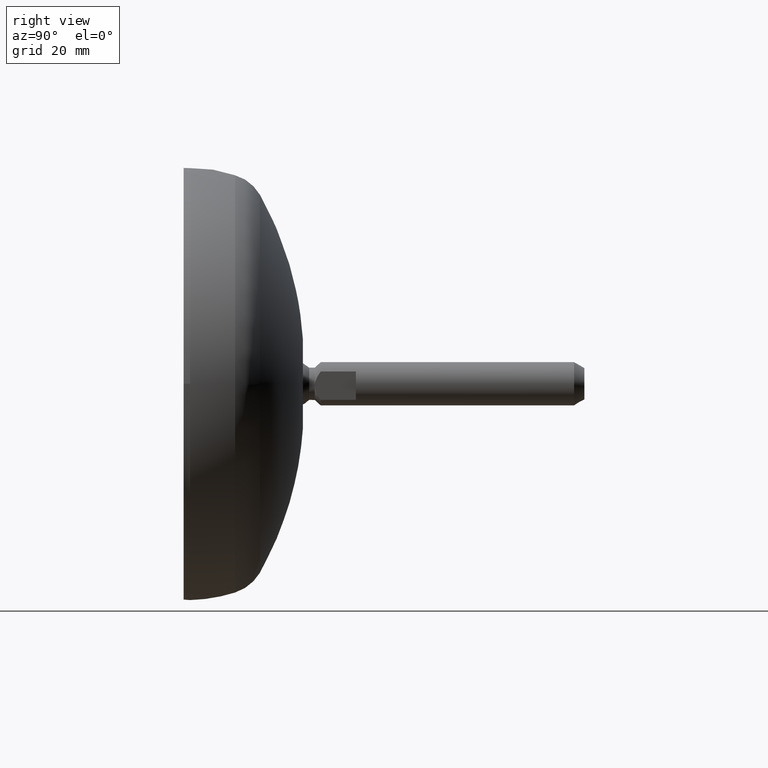
[diagram: clean part render]
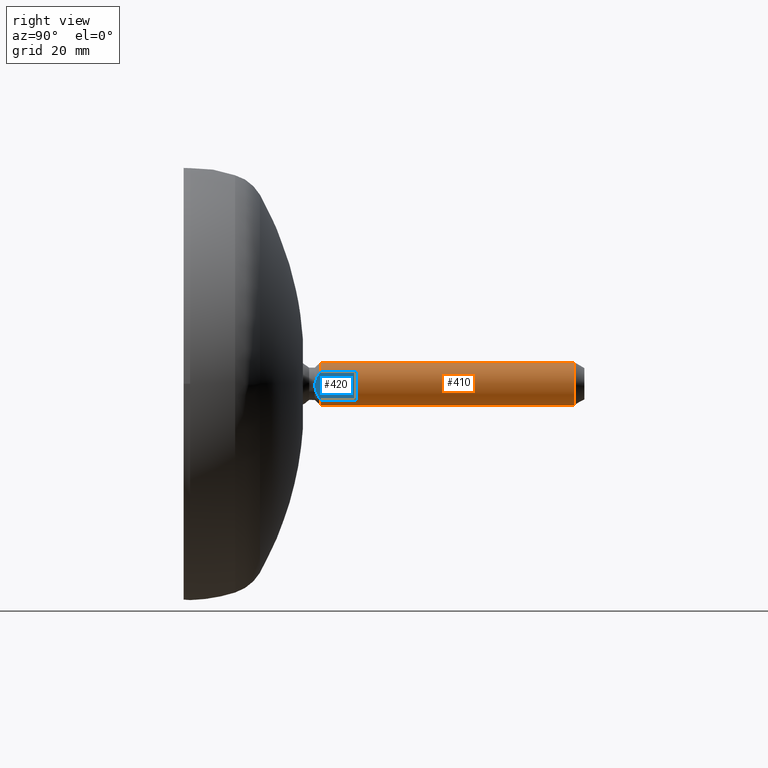
[diagram: same view with the hole feature highlighted: cylindrical wall and planar end face, labeled with their STEP entity ids]
A machine part, right view. The highlighted faces form one hole feature of diameter 8 mm: the cylindrical wall (entity #410, orange) and its adjacent planar end face (entity #420, blue) — they share a circular edge in the B-rep.
Wall:
#38=CYLINDRICAL_SURFACE('',#503,3.99999847606768);
#49=LINE('',#874,#61);
#50=LINE('',#878,#62);
#51=LINE('',#882,#63);
#52=LINE('',#889,#64);
#53=LINE('',#892,#65);
#61=VECTOR('',#616,10.);
#62=VECTOR('',#619,10.);
#63=VECTOR('',#622,3.99999847606768);
#64=VECTOR('',#629,10.);
#65=VECTOR('',#632,10.);
#89=FACE_OUTER_BOUND('',#115,.T.);
#115=EDGE_LOOP('',(#333,#334,#335,#336,#337,#338,#339,#340,#341,#342,#343,
#344,#345));
#154=CIRCLE('',#504,3.99999847606768);
#155=CIRCLE('',#505,3.99999847606786);
#156=CIRCLE('',#506,3.99999847606768);
#157=CIRCLE('',#507,3.99999847606768);
#158=CIRCLE('',#508,3.99999847606768);
#159=CIRCLE('',#509,3.99999847606768);
#160=CIRCLE('',#510,3.99999847606786);
#193=VERTEX_POINT('',#870);
#194=VERTEX_POINT('',#871);
#195=VERTEX_POINT('',#873);
#196=VERTEX_POINT('',#875);
#197=VERTEX_POINT('',#877);
#198=VERTEX_POINT('',#879);
#199=VERTEX_POINT('',#881);
#200=VERTEX_POINT('',#883);
#201=VERTEX_POINT('',#886);
#202=VERTEX_POINT('',#888);
#203=VERTEX_POINT('',#890);
#243=EDGE_CURVE('',#193,#194,#154,.T.);
#244=EDGE_CURVE('',#193,#195,#49,.T.);
#245=EDGE_CURVE('',#195,#196,#155,.T.);
#246=EDGE_CURVE('',#196,#197,#50,.T.);
#247=EDGE_CURVE('',#198,#197,#156,.T.);
#248=EDGE_CURVE('',#198,#199,#51,.T.);
#249=EDGE_CURVE('',#199,#200,#157,.T.);
#250=EDGE_CURVE('',#200,#199,#158,.T.);
#251=EDGE_CURVE('',#201,#198,#159,.T.);
#252=EDGE_CURVE('',#202,#201,#52,.T.);
#253=EDGE_CURVE('',#203,#202,#160,.T.);
#254=EDGE_CURVE('',#194,#203,#53,.T.);
#333=ORIENTED_EDGE('',*,*,#243,.F.);
#334=ORIENTED_EDGE('',*,*,#244,.T.);
#335=ORIENTED_EDGE('',*,*,#245,.T.);
#336=ORIENTED_EDGE('',*,*,#246,.T.);
#337=ORIENTED_EDGE('',*,*,#247,.F.);
#338=ORIENTED_EDGE('',*,*,#248,.T.);
#339=ORIENTED_EDGE('',*,*,#249,.T.);
#340=ORIENTED_EDGE('',*,*,#250,.T.);
#341=ORIENTED_EDGE('',*,*,#248,.F.);
#342=ORIENTED_EDGE('',*,*,#251,.F.);
#343=ORIENTED_EDGE('',*,*,#252,.F.);
#344=ORIENTED_EDGE('',*,*,#253,.F.);
#345=ORIENTED_EDGE('',*,*,#254,.F.);
#410=ADVANCED_FACE('',(#89),#38,.T.);
#503=AXIS2_PLACEMENT_3D('',#869,#612,#613);
#504=AXIS2_PLACEMENT_3D('',#872,#614,#615);
#505=AXIS2_PLACEMENT_3D('',#876,#617,#618);
#506=AXIS2_PLACEMENT_3D('',#880,#620,#621);
#507=AXIS2_PLACEMENT_3D('',#884,#623,#624);
#508=AXIS2_PLACEMENT_3D('',#885,#625,#626);
#509=AXIS2_PLACEMENT_3D('',#887,#627,#628);
#510=AXIS2_PLACEMENT_3D('',#891,#630,#631);
#612=DIRECTION('center_axis',(-3.00065037E-7,0.,-0.999999999999955));
#613=DIRECTION('ref_axis',(-0.999999999999955,0.,3.00065037E-7));
#614=DIRECTION('center_axis',(-3.00065037E-7,0.,-0.999999999999955));
#615=DIRECTION('ref_axis',(-0.999999999999955,0.,3.00065037E-7));
#616=DIRECTION('',(3.00065037E-7,0.,0.999999999999955));
#617=DIRECTION('center_axis',(0.,0.,1.));
#618=DIRECTION('ref_axis',(-1.,0.,0.));
#619=DIRECTION('',(-3.00065037E-7,0.,-0.999999999999955));
#620=DIRECTION('center_axis',(-3.00065037E-7,0.,-0.999999999999955));
#621=DIRECTION('ref_axis',(-0.999999999999955,0.,3.00065037E-7));
#622=DIRECTION('',(3.00065037E-7,0.,0.999999999999955));
#623=DIRECTION('center_axis',(-3.00065037E-7,0.,-0.999999999999955));
#624=DIRECTION('ref_axis',(-0.999999999999955,0.,3.00065037E-7));
#625=DIRECTION('center_axis',(-3.00065037E-7,0.,-0.999999999999955));
#626=DIRECTION('ref_axis',(-0.999999999999955,0.,3.00065037E-7));
#627=DIRECTION('center_axis',(-3.00065037E-7,0.,-0.999999999999955));
#628=DIRECTION('ref_axis',(-0.999999999999955,0.,3.00065037E-7));
#629=DIRECTION('',(-3.00065037E-7,0.,-0.999999999999955));
#630=DIRECTION('center_axis',(0.,0.,-1.));
#631=DIRECTION('ref_axis',(-1.,0.,0.));
#632=DIRECTION('',(3.00065037E-7,0.,0.999999999999955));
#869=CARTESIAN_POINT('Origin',(4.411129635E-5,-3.16697664E-6,85.9686722210263));
#870=CARTESIAN_POINT('',(-2.64572578013579,-3.00000316649036,16.3739175404526));
#871=CARTESIAN_POINT('',(-2.64572578013578,2.99999683253709,16.3739175404526));
#872=CARTESIAN_POINT('Origin',(2.32283434731532E-5,-3.16697664E-6,16.3739167452464));
#873=CARTESIAN_POINT('',(-2.64572382927559,-3.00000316661796,22.8739241814363));
#874=CARTESIAN_POINT('',(-2.64570489579846,-3.00000316697664,85.968673014923));
#875=CARTESIAN_POINT('',(2.64577418678558,-3.00000316662812,22.8739241814363));
#876=CARTESIAN_POINT('Origin',(2.51787684449939E-5,-3.16697664E-6,22.8739241814363));
#877=CARTESIAN_POINT('',(2.64577223682273,-3.00000316649036,16.3739159526591));
#878=CARTESIAN_POINT('',(2.64579311839116,-3.00000316697664,85.9686714271295));
#879=CARTESIAN_POINT('',(4.00002170441098,-3.16697664048986E-6,16.3739155449866));
#880=CARTESIAN_POINT('Origin',(2.32283434731532E-5,-3.16697664E-6,16.3739167452464));
#881=CARTESIAN_POINT('',(4.0000357407799,-3.16697664E-6,63.1516710107676));
#882=CARTESIAN_POINT('',(4.00004258736385,-3.16697664048986E-6,85.9686710207666));
#883=CARTESIAN_POINT('',(3.25534027333287,-2.32443659945757,63.1516712681113));
#884=CARTESIAN_POINT('Origin',(3.7264712397771E-5,-3.16697664E-6,63.1516722110273));
#885=CARTESIAN_POINT('Origin',(3.7264712397771E-5,-3.16697664E-6,63.1516722110273));
#886=CARTESIAN_POINT('',(2.64577223682273,2.99999683253708,16.3739159526591));
#887=CARTESIAN_POINT('Origin',(2.32283434731532E-5,-3.16697664E-6,16.3739167452464));
#888=CARTESIAN_POINT('',(2.64577418678558,2.99999683267484,22.8739241814363));
#889=CARTESIAN_POINT('',(2.64579311839116,2.99999683302336,85.9686714271295));
#890=CARTESIAN_POINT('',(-2.64572382927559,2.99999683266468,22.8739241814363));
#891=CARTESIAN_POINT('Origin',(2.51787684449939E-5,-3.16697664E-6,22.8739241814363));
#892=CARTESIAN_POINT('',(-2.64570489579846,2.99999683302336,85.968673014923));
End face:
#23=(
BOUNDED_CURVE()
B_SPLINE_CURVE(2,(#895,#896,#897),.UNSPECIFIED.,.F.,.F.)
B_SPLINE_CURVE_WITH_KNOTS((3,3),(-2.03134087025805,-1.3526245069002),
 .UNSPECIFIED.)
CURVE()
GEOMETRIC_REPRESENTATION_ITEM()
RATIONAL_B_SPLINE_CURVE((1.98131559154573,2.3115343695334,2.31153435390955))
REPRESENTATION_ITEM('')
);
#25=(
BOUNDED_CURVE()
B_SPLINE_CURVE(2,(#906,#907,#908),.UNSPECIFIED.,.F.,.F.)
B_SPLINE_CURVE_WITH_KNOTS((3,3),(-1.35262445118213,-0.673908173064005),
 .UNSPECIFIED.)
CURVE()
GEOMETRIC_REPRESENTATION_ITEM()
RATIONAL_B_SPLINE_CURVE((2.31153429188029,2.31153427625644,1.98131553837779))
REPRESENTATION_ITEM('')
);
#52=LINE('',#889,#64);
#53=LINE('',#892,#65);
#57=LINE('',#995,#69);
#64=VECTOR('',#629,10.);
#65=VECTOR('',#632,10.);
#69=VECTOR('',#668,5.2915658081811);
#99=FACE_OUTER_BOUND('',#125,.T.);
#125=EDGE_LOOP('',(#384,#385,#386,#387,#388));
#194=VERTEX_POINT('',#871);
#201=VERTEX_POINT('',#886);
#202=VERTEX_POINT('',#888);
#203=VERTEX_POINT('',#890);
#204=VERTEX_POINT('',#894);
#252=EDGE_CURVE('',#202,#201,#52,.T.);
#254=EDGE_CURVE('',#194,#203,#53,.T.);
#255=EDGE_CURVE('',#201,#204,#23,.T.);
#259=EDGE_CURVE('',#204,#194,#25,.T.);
#270=EDGE_CURVE('',#203,#202,#57,.T.);
#384=ORIENTED_EDGE('',*,*,#252,.T.);
#385=ORIENTED_EDGE('',*,*,#255,.T.);
#386=ORIENTED_EDGE('',*,*,#259,.T.);
#387=ORIENTED_EDGE('',*,*,#254,.T.);
#388=ORIENTED_EDGE('',*,*,#270,.T.);
#397=PLANE('',#527);
#420=ADVANCED_FACE('',(#99),#397,.T.);
#527=AXIS2_PLACEMENT_3D('',#996,#669,#670);
#629=DIRECTION('',(-3.00065037E-7,0.,-0.999999999999955));
#632=DIRECTION('',(3.00065037E-7,0.,0.999999999999955));
#668=DIRECTION('',(1.,0.,0.));
#669=DIRECTION('center_axis',(0.,1.,0.));
#670=DIRECTION('ref_axis',(0.,0.,1.));
#871=CARTESIAN_POINT('',(-2.64572578013578,2.99999683253709,16.3739175404526));
#886=CARTESIAN_POINT('',(2.64577223682273,2.99999683253708,16.3739159526591));
#888=CARTESIAN_POINT('',(2.64577418678558,2.99999683267484,22.8739241814363));
#889=CARTESIAN_POINT('',(2.64579311839116,2.99999683302336,85.9686714271295));
#890=CARTESIAN_POINT('',(-2.64572382927559,2.99999683266468,22.8739241814363));
#892=CARTESIAN_POINT('',(-2.64570489579846,2.99999683302336,85.968673014923));
#894=CARTESIAN_POINT('',(2.2793426677E-5,2.99999683302336,15.2820881251202));
#895=CARTESIAN_POINT('Ctrl Pts',(2.64577223698592,2.99999683302334,16.3739159524672));
#896=CARTESIAN_POINT('Ctrl Pts',(1.13391551837439,2.99999683302334,15.2820877406));
#897=CARTESIAN_POINT('Ctrl Pts',(2.27934266818895E-5,2.99999683302334,15.2820881251202));
#906=CARTESIAN_POINT('Ctrl Pts',(2.27934266804445E-5,2.99999683302335,15.2820881251202));
#907=CARTESIAN_POINT('Ctrl Pts',(-1.13386983955198,2.99999683302335,15.2820885096404));
#908=CARTESIAN_POINT('Ctrl Pts',(-2.64572578029897,2.99999683302335,16.3739175402608));
#995=CARTESIAN_POINT('',(-2.64575821256266,2.99999683302336,22.8739241814363));
#996=CARTESIAN_POINT('Origin',(-2.91034239856326,2.99999683302336,14.9024963223044));